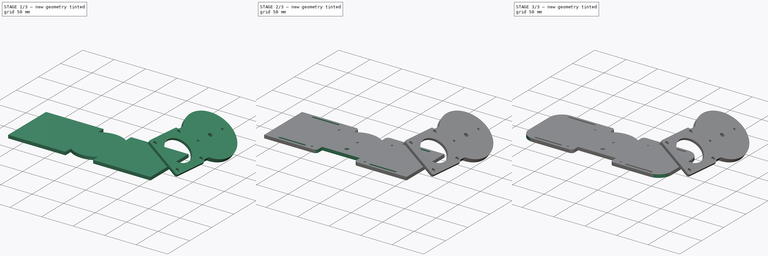
[diagram: build sequence overview — one tinted view per stage of 3, left to right]
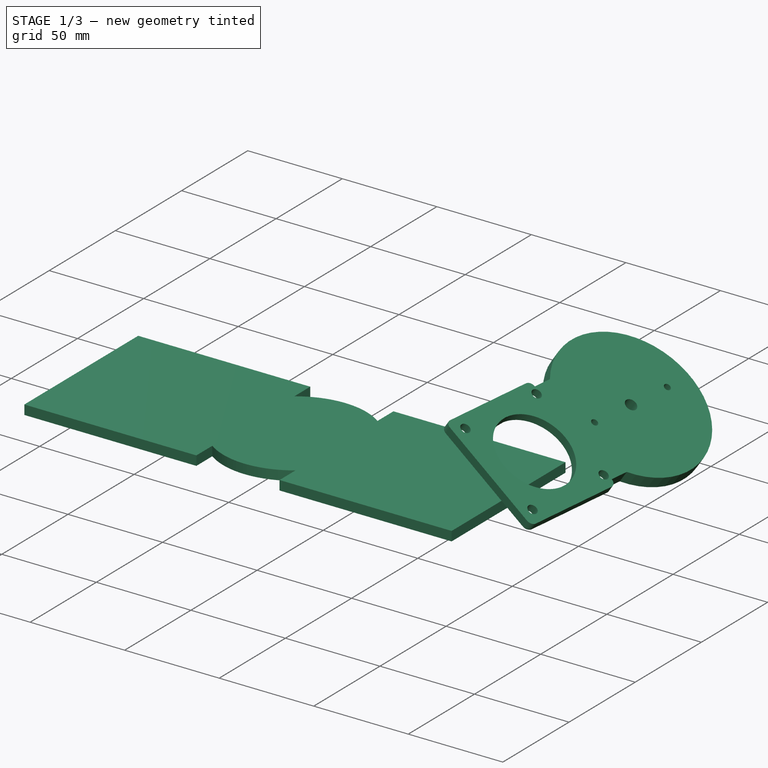
[diagram: stage 1 of 3 — iso view after this stage's code; geometry added in this stage tinted green]
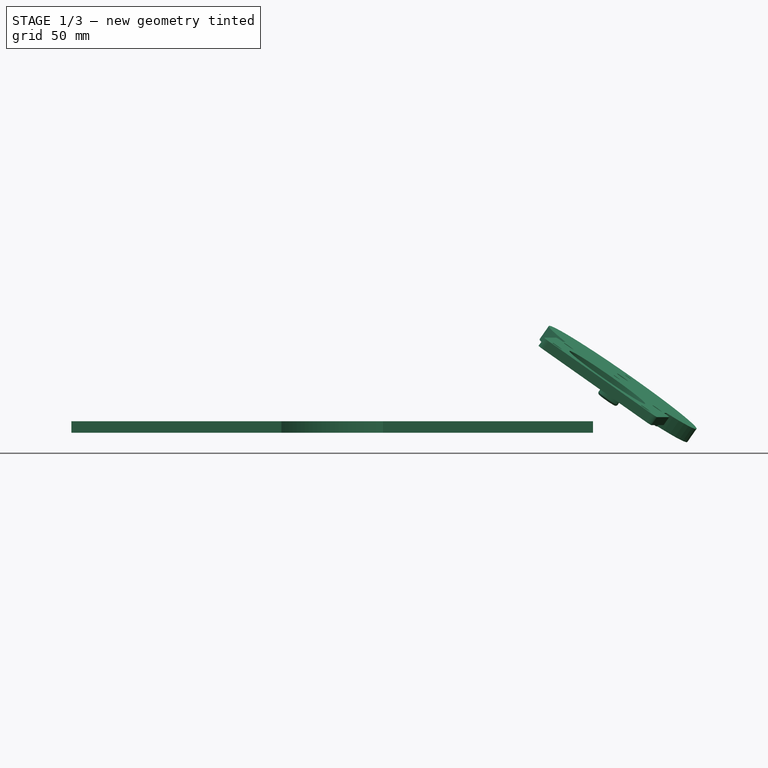
[diagram: stage 1 of 3 — front view after this stage's code; geometry added in this stage tinted green]
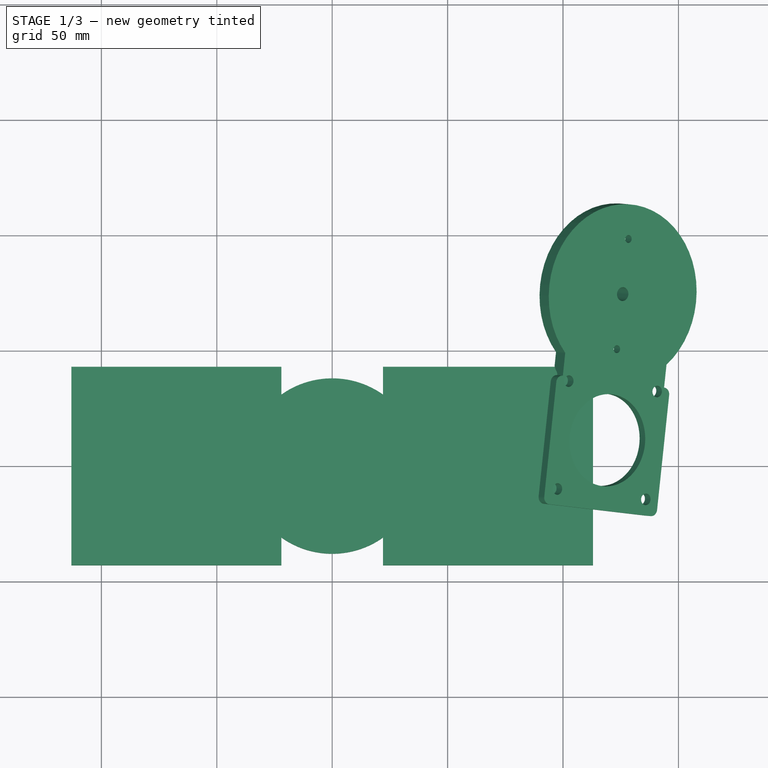
[diagram: stage 1 of 3 — top view after this stage's code; geometry added in this stage tinted green]
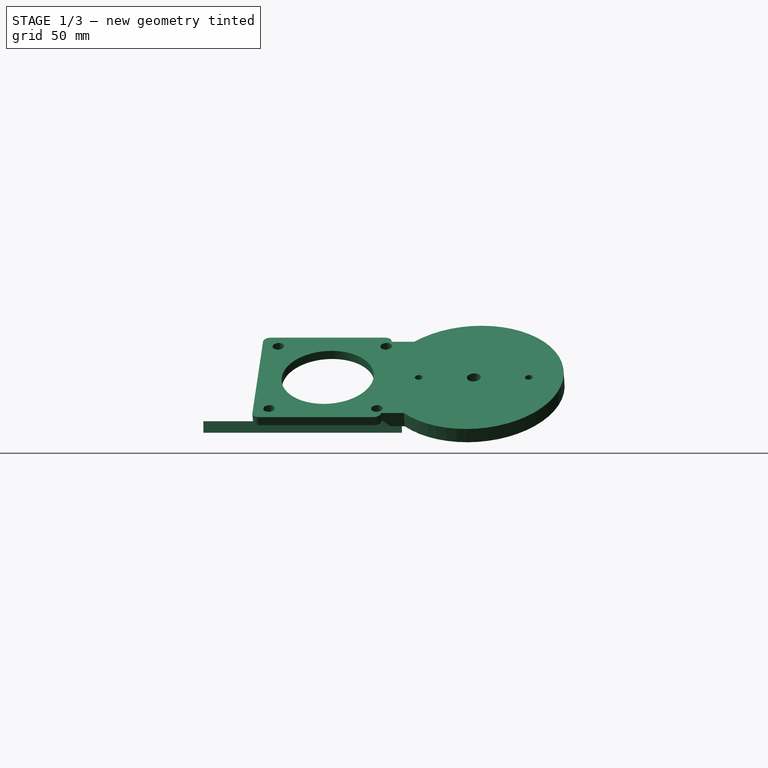
[diagram: stage 1 of 3 — right view after this stage's code; geometry added in this stage tinted green]
FCSTD DOCUMENT  (FreeCAD 0.21R33668 +26 (Git))
Label: base_link_1+Base_Low
License: All rights reserved
LicenseURL: https://en.wikipedia.org/wiki/All_rights_reserved
objects: App::FeaturePython×6, Sketcher::SketchObject×3, PartDesign::Pocket×2, PartDesign::Fillet×2, Part::FeaturePython×2, PartDesign::Pad×1, PartDesign::Body×1
note: 16 computed .brp shape members not serialized (recipe doc carries the construction recipe); baked Part::Feature solids carry a one-line shape summary decoded from their .brp

FEATURE [Sketcher::SketchObject] Sketch
  FullyConstrained = true
  MapMode = 5
  Support = -> [XY_Plane]
  sketch-geometry (12):
    g0: ArcOfCircle CenterX=0 CenterY=0 CenterZ=0 NormalX=0 NormalY=0 NormalZ=1 AngleXU=0 Radius=38 StartAngle=4.09495 EndAngle=5.32983
    g1: LineSegment StartX=-113 StartY=43.0039 StartZ=0 EndX=-22 EndY=43.0039 EndZ=0
    g2: LineSegment StartX=-22 StartY=43.0039 StartZ=0 EndX=-22 EndY=30.9839 EndZ=0
    g3: LineSegment StartX=-22 StartY=-43.0039 StartZ=0 EndX=-113 EndY=-43.0039 EndZ=0
    g4: LineSegment StartX=-113 StartY=-43.0039 StartZ=0 EndX=-113 EndY=43.0039 EndZ=0
    g5: LineSegment StartX=22 StartY=43.0039 StartZ=0 EndX=113 EndY=43.0039 EndZ=0
    g6: LineSegment StartX=113 StartY=43.0039 StartZ=0 EndX=113 EndY=-43.0039 EndZ=0
    g7: LineSegment StartX=113 StartY=-43.0039 StartZ=0 EndX=22 EndY=-43.0039 EndZ=0
    g8: LineSegment StartX=22 StartY=-43.0039 StartZ=0 EndX=22 EndY=-30.9839 EndZ=0
    g9: LineSegment StartX=-22 StartY=-30.9839 StartZ=0 EndX=-22 EndY=-43.0039 EndZ=0
    g10: LineSegment StartX=22 StartY=30.9839 StartZ=0 EndX=22 EndY=43.0039 EndZ=0
    g11: ArcOfCircle CenterX=0 CenterY=0 CenterZ=0 NormalX=0 NormalY=0 NormalZ=1 AngleXU=0 Radius=38 StartAngle=0.953359 EndAngle=2.18823
  constraints (36):
    c: Coincident(g0,g-1)
    c: Diameter(g0) = 76
    c: Coincident(g1,g2)
    c: Coincident(g9,g3)
    c: Coincident(g3,g4)
    c: Coincident(g4,g1)
    c: Horizontal(g1)
    c: Horizontal(g3)
    c: Vertical(g2)
    c: Vertical(g4)
    c: Coincident(g5,g6)
    c: Coincident(g6,g7)
    c: Coincident(g7,g8)
    c: Coincident(g10,g5)
    c: Horizontal(g5)
    c: Horizontal(g7)
    c: Vertical(g6)
    c: Vertical(g8)
    c: Horizontal(g1,g5)
    c: Horizontal(g9,g7)
    c: DistanceX(g1,g1) = 91
    c: DistanceX(g1,g0) = 22
    c: Equal(g1,g5)
    c: DistanceX(g0,g5) = 22
    c: Coincident(g2,g11)
    c: Coincident(g9,g0)
    c: Equal(g0,g11)
    c: Coincident(g0,g8)
    c: Coincident(g11,g10)
    c: Coincident(g0,g11)
    c: DistanceX(g7,g7) = 91
    c: DistanceX(g3,g3) = 91
    c: Vertical(g10,g5)
    c: Vertical(g0,g3)
    c: DistanceY(g10,g10) = 12.02
    c: DistanceY(g8,g8) = 12.02
FEATURE [PartDesign::Pad] Pad
  Direction = (0,0,1)
  Length = 5
  Length2 = 10
  Profile = -> Sketch
  ReferenceAxis = -> Sketch [N_Axis]
  Type = 0
FEATURE [Part::FeaturePython] b_Robot_Base_Low1_001_  label="Robot_Base_Low1_001"  # a2plus imported part (geometry in sourceFile) (typed FeaturePython)
  Placement = pos=(0,0,0) rot=(-0.05163,-0.98515,0.163748;5.66369rad)
  a2p_Version = 0.4.60n
  fixedPosition = true
  objectType = a2pPart
  sourceFile = .\Robot_Base_Low.step
  subassemblyImport = false
  timeLastImport = 1.72308e+09
  updateColors = true
FEATURE [App::FeaturePython] planeCoincident_001  label="planeCoincident_001__Pocket001"  # a2plus constraint (typed FeaturePython)
  Object1 = b_Robot_Base_Low1_001_
  Object2 = Pocket001
  ParentTreeObject = -> b_Robot_Base_Low1_001_
  SubElement1 = Face5
  SubElement2 = Face44
  Suppressed = false
  Type = plane
  directionConstraint = 0
  offset = 0
FEATURE [App::FeaturePython] planeCoincident_001_mirror  label="planeCoincident_001__Robot_Base_Low1_001"  # a2plus constraint (typed FeaturePython)
  Object1 = b_Robot_Base_Low1_001_
  Object2 = Pocket001
  ParentTreeObject = -> Pocket001
  SubElement1 = Face5
  SubElement2 = Face44
  Suppressed = false
  Type = plane
  directionConstraint = 0
  offset = 0
FEATURE [App::FeaturePython] axisCoincident_001  label="axisCoincident_001__Pocket001"  # a2plus constraint (typed FeaturePython)
  Object1 = b_Robot_Base_Low1_001_
  Object2 = Pocket001
  ParentTreeObject = -> b_Robot_Base_Low1_001_
  SubElement1 = Face3
  SubElement2 = Face27
  Suppressed = false
  Type = axial
  directionConstraint = 1
  lockRotation = false
FEATURE [App::FeaturePython] axisCoincident_001_mirror  label="axisCoincident_001__Robot_Base_Low1_001"  # a2plus constraint (typed FeaturePython)
  Object1 = b_Robot_Base_Low1_001_
  Object2 = Pocket001
  ParentTreeObject = -> Pocket001
  SubElement1 = Face3
  SubElement2 = Face27
  Suppressed = false
  Type = axial
  directionConstraint = 1
  lockRotation = false
FEATURE [App::FeaturePython] planesParallel_001  label="planesParallel_001__Pocket001"  # a2plus constraint (typed FeaturePython)
  Object1 = b_Robot_Base_Low1_001_
  Object2 = Pocket001
  ParentTreeObject = -> b_Robot_Base_Low1_001_
  SubElement1 = Face81
  SubElement2 = Face18
  Suppressed = false
  Type = planesParallel
  directionConstraint = 0
FEATURE [App::FeaturePython] planesParallel_001_mirror  label="planesParallel_001__Robot_Base_Low1_001"  # a2plus constraint (typed FeaturePython)
  Object1 = b_Robot_Base_Low1_001_
  Object2 = Pocket001
  ParentTreeObject = -> Pocket001
  SubElement1 = Face81
  SubElement2 = Face18
  Suppressed = false
  Type = planesParallel
  directionConstraint = 0
FEATURE [Part::FeaturePython] Connect  # WARN: FeaturePython — macro-defined, semantics opaque (R4)
  Objects = -> [b_Robot_Base_Low1_001_,Pocket001]
  Tolerance = 0
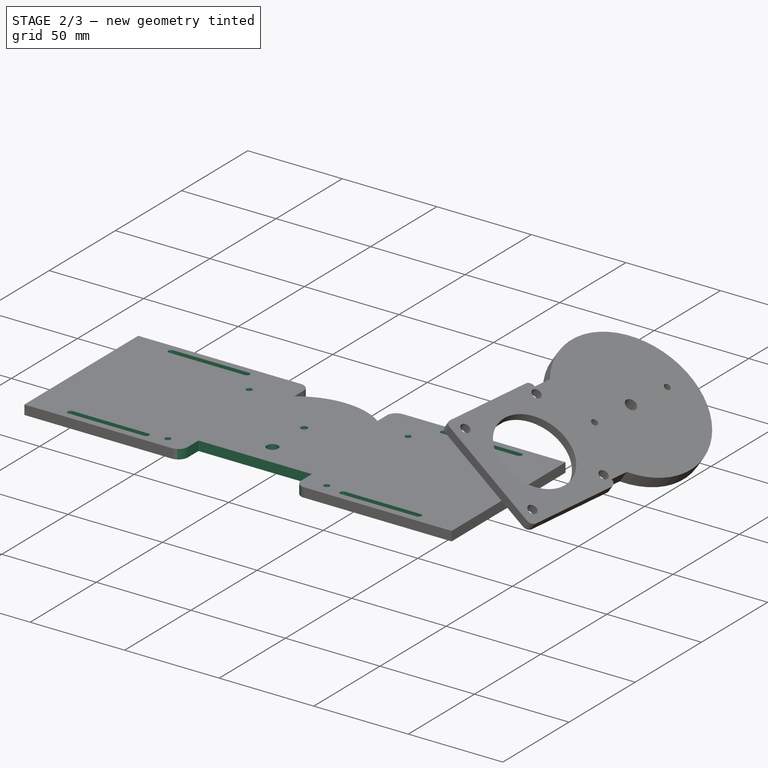
[diagram: stage 2 of 3 — iso view after this stage's code; geometry added in this stage tinted green]
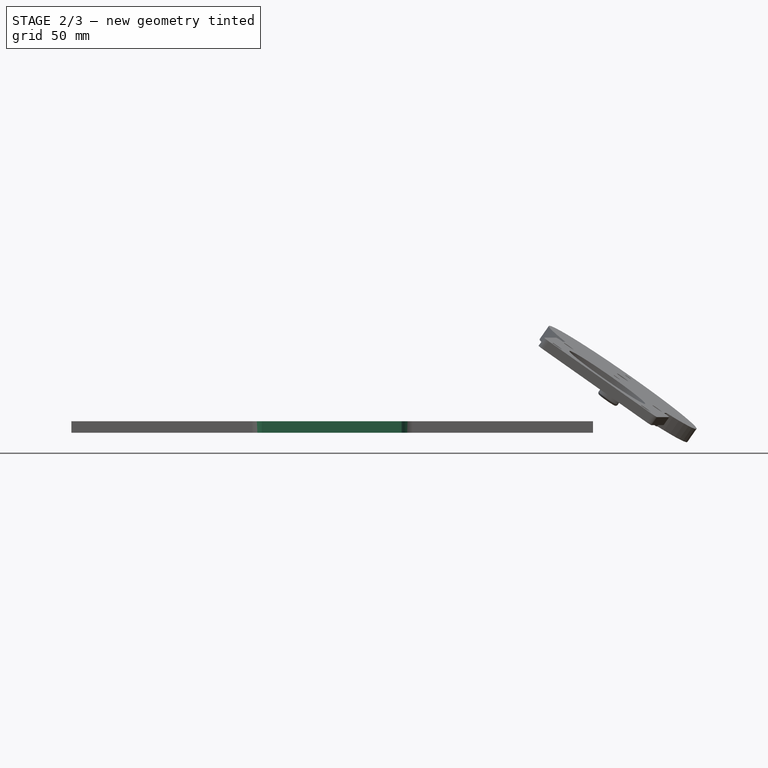
[diagram: stage 2 of 3 — front view after this stage's code; geometry added in this stage tinted green]
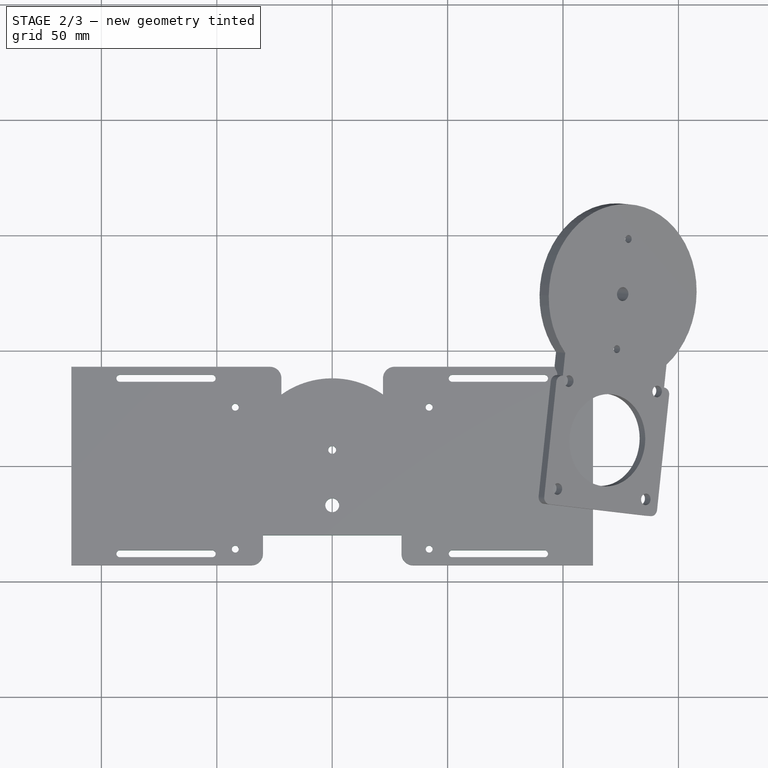
[diagram: stage 2 of 3 — top view after this stage's code; geometry added in this stage tinted green]
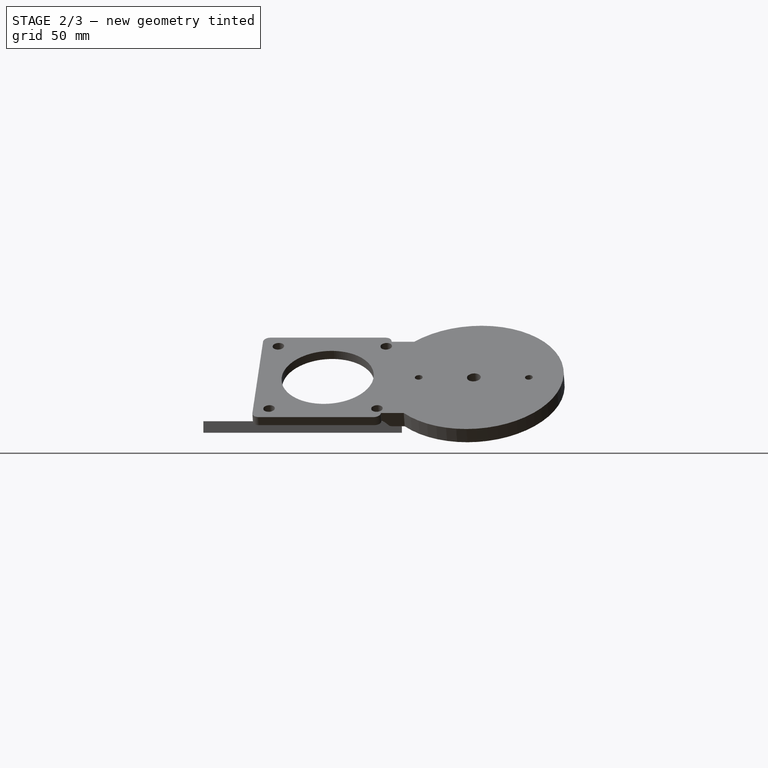
[diagram: stage 2 of 3 — right view after this stage's code; geometry added in this stage tinted green]
FEATURE [Sketcher::SketchObject] Sketch001
  ExternalGeometry = -> [Pad]
  FullyConstrained = false
  MapMode = 5
  Placement = pos=(0,0,5) rot=(0,0,1;0rad)
  Support = -> [Pad]
  sketch-geometry (26):
    g0: LineSegment StartX=-30 StartY=-30.0039 StartZ=0 EndX=30 EndY=-30.0039 EndZ=0
    g1: LineSegment StartX=30 StartY=-30.0039 StartZ=0 EndX=30 EndY=-50.0039 EndZ=0
    g2: LineSegment StartX=30 StartY=-50.0039 StartZ=0 EndX=-30 EndY=-50.0039 EndZ=0
    g3: LineSegment StartX=-30 StartY=-50.0039 StartZ=0 EndX=-30 EndY=-30.0039 EndZ=0
    g4: Circle CenterX=0 CenterY=-17 CenterZ=0 NormalX=0 NormalY=0 NormalZ=1 AngleXU=0 Radius=3
    g5: Circle CenterX=0 CenterY=7 CenterZ=0 NormalX=0 NormalY=0 NormalZ=1 AngleXU=0 Radius=1.7
    g6: ArcOfCircle CenterX=-92 CenterY=38.0039 CenterZ=0 NormalX=0 NormalY=0 NormalZ=1 AngleXU=0 Radius=1.5 StartAngle=1.5708 EndAngle=4.71239
    g7: ArcOfCircle CenterX=-52 CenterY=38.0039 CenterZ=0 NormalX=0 NormalY=0 NormalZ=1 AngleXU=0 Radius=1.5 StartAngle=4.71239 EndAngle=7.85398
    g8: LineSegment StartX=-92 StartY=36.5039 StartZ=0 EndX=-52 EndY=36.5039 EndZ=0
    g9: LineSegment StartX=-52 StartY=39.5039 StartZ=0 EndX=-92 EndY=39.5039 EndZ=0
    g10: ArcOfCircle CenterX=52 CenterY=38.0039 CenterZ=0 NormalX=0 NormalY=0 NormalZ=1 AngleXU=0 Radius=1.5 StartAngle=1.5708 EndAngle=4.71239
    g11: ArcOfCircle CenterX=92 CenterY=38.0039 CenterZ=0 NormalX=0 NormalY=0 NormalZ=1 AngleXU=0 Radius=1.5 StartAngle=4.71239 EndAngle=7.85398
    g12: LineSegment StartX=52 StartY=36.5039 StartZ=0 EndX=92 EndY=36.5039 EndZ=0
    g13: LineSegment StartX=92 StartY=39.5039 StartZ=0 EndX=52 EndY=39.5039 EndZ=0
    g14: ArcOfCircle CenterX=-92 CenterY=-38.0039 CenterZ=0 NormalX=0 NormalY=0 NormalZ=1 AngleXU=0 Radius=1.5 StartAngle=1.5708 EndAngle=4.71239
    g15: ArcOfCircle CenterX=-52 CenterY=-38.0039 CenterZ=0 NormalX=0 NormalY=0 NormalZ=1 AngleXU=0 Radius=1.5 StartAngle=4.71239 EndAngle=7.85398
    g16: LineSegment StartX=-92 StartY=-39.5039 StartZ=0 EndX=-52 EndY=-39.5039 EndZ=0
    g17: LineSegment StartX=-52 StartY=-36.5039 StartZ=0 EndX=-92 EndY=-36.5039 EndZ=0
    g18: ArcOfCircle CenterX=52 CenterY=-38.0039 CenterZ=0 NormalX=0 NormalY=0 NormalZ=1 AngleXU=0 Radius=1.5 StartAngle=1.5708 EndAngle=4.71239
    g19: ArcOfCircle CenterX=92 CenterY=-38.0039 CenterZ=0 NormalX=0 NormalY=0 NormalZ=1 AngleXU=0 Radius=1.5 StartAngle=4.71239 EndAngle=7.85398
    g20: LineSegment StartX=52 StartY=-39.5039 StartZ=0 EndX=92 EndY=-39.5039 EndZ=0
    g21: LineSegment StartX=92 StartY=-36.5039 StartZ=0 EndX=52 EndY=-36.5039 EndZ=0
    g22: Circle CenterX=42 CenterY=25.4961 CenterZ=0 NormalX=0 NormalY=0 NormalZ=1 AngleXU=0 Radius=1.5
    g23: Circle CenterX=42 CenterY=-36.0039 CenterZ=0 NormalX=0 NormalY=0 NormalZ=1 AngleXU=0 Radius=1.5
    g24: Circle CenterX=-42 CenterY=25.4961 CenterZ=0 NormalX=0 NormalY=0 NormalZ=1 AngleXU=0 Radius=1.5
    g25: Circle CenterX=-42 CenterY=-36.0039 CenterZ=0 NormalX=0 NormalY=0 NormalZ=1 AngleXU=0 Radius=1.5
  constraints (69):
    c: Coincident(g0,g1)
    c: Coincident(g1,g2)
    c: Coincident(g2,g3)
    c: Coincident(g3,g0)
    c: Horizontal(g0)
    c: Horizontal(g2)
    c: Vertical(g1)
    c: Vertical(g3)
    c: DistanceY(g-3,g0) = 13
    c: DistanceX(g0,g0) = 60
    c: DistanceY(g1,g1) = 20
    c: PointOnObject(g4,g-2)
    c: Diameter(g4) = 6
    c: DistanceY(g4,g-1) = 17
    c: PointOnObject(g5,g-2)
    c: Diameter(g5) = 3.4
    c: DistanceY(g4,g5) = 24
    c: Tangent(g6,g8) = -1.5708
    c: Tangent(g8,g7) = -1.5708
    c: Tangent(g7,g9) = -1.5708
    c: Tangent(g9,g6) = -1.5708
    c: Equal(g6,g7)
    c: Horizontal(g8)
    c: Tangent(g10,g12) = -1.5708
    c: Tangent(g12,g11) = -1.5708
    c: Tangent(g11,g13) = -1.5708
    c: Tangent(g13,g10) = -1.5708
    c: Equal(g10,g11)
    c: Tangent(g14,g16) = -1.5708
    c: Tangent(g16,g15) = -1.5708
    c: Tangent(g15,g17) = -1.5708
    c: Tangent(g17,g14) = -1.5708
    c: Equal(g14,g15)
    c: Horizontal(g16)
    c: Tangent(g18,g20) = -1.5708
    c: Tangent(g20,g19) = -1.5708
    c: Tangent(g19,g21) = -1.5708
    c: Tangent(g21,g18) = -1.5708
    c: Equal(g18,g19)
    c: Horizontal(g20)
    c: Horizontal(g7,g10)
    c: Horizontal(g15,g18)
    c: Vertical(g10,g18)
    c: Vertical(g11,g19)
    c: Horizontal(g11,g10)
    c: Equal(g7,g10)
    c: Equal(g18,g15)
    c: Radius(g11) = 1.5
    c: DistanceY(g11,g-4) = 5
    c: DistanceX(g-4,g11) = 70
    c: DistanceX(g13,g13) = 40
    c: Equal(g19,g11)
    c: DistanceY(g-3,g19) = 5
    c: DistanceX(g6,g-5) = 70
    c: DistanceX(g9,g9) = 40
    c: Vertical(g14,g6)
    c: Vertical(g7,g15)
    c: Equal(g24,g22)
    c: Equal(g22,g23)
    c: Equal(g25,g23)
    c: DistanceY(g23,g22) = 61.5
    c: DistanceX(g25,g23) = 84
    c: DistanceX(g-1,g23) = 42
    c: Horizontal(g24,g22)
    c: Horizontal(g25,g23)
    c: Diameter(g22) = 3
    c: DistanceY(g-3,g23) = 7
    c: Vertical(g23,g22)
    c: Vertical(g24,g25)
FEATURE [PartDesign::Pocket] Pocket
  BaseFeature = -> Pad
  Direction = (0,0,-1)
  Length = 5
  Length2 = 5
  Profile = -> Sketch001
  ReferenceAxis = -> Sketch001 [N_Axis]
  Type = 1
FEATURE [PartDesign::Fillet] Fillet
  Base = -> Pocket [Edge46,Edge40,Edge52,Edge37]
  BaseFeature = -> Pocket
  Radius = 5
  SupportTransform = false
  UseAllEdges = false
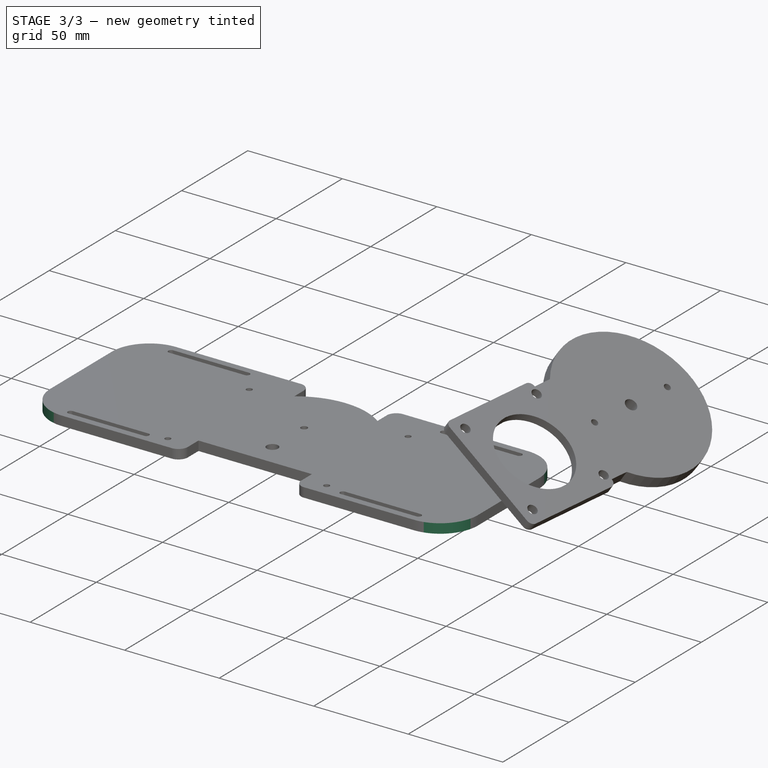
[diagram: stage 3 of 3 — iso view after this stage's code; geometry added in this stage tinted green]
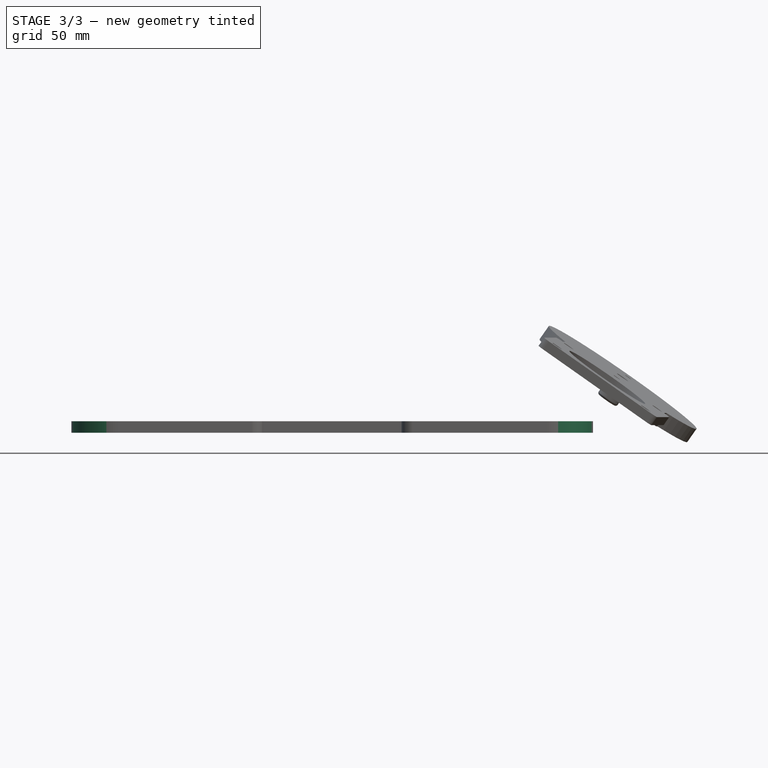
[diagram: stage 3 of 3 — front view after this stage's code; geometry added in this stage tinted green]
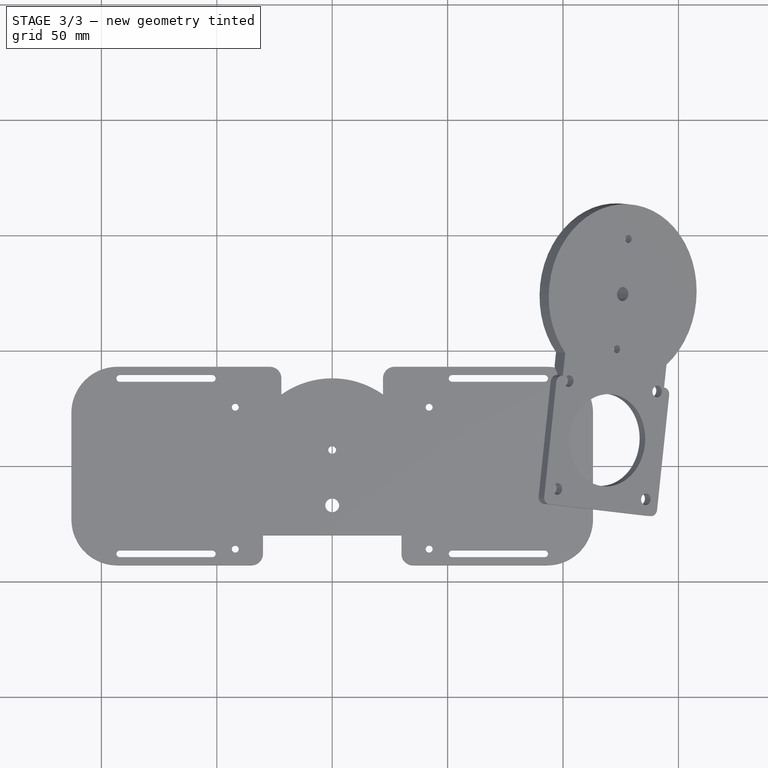
[diagram: stage 3 of 3 — top view after this stage's code; geometry added in this stage tinted green]
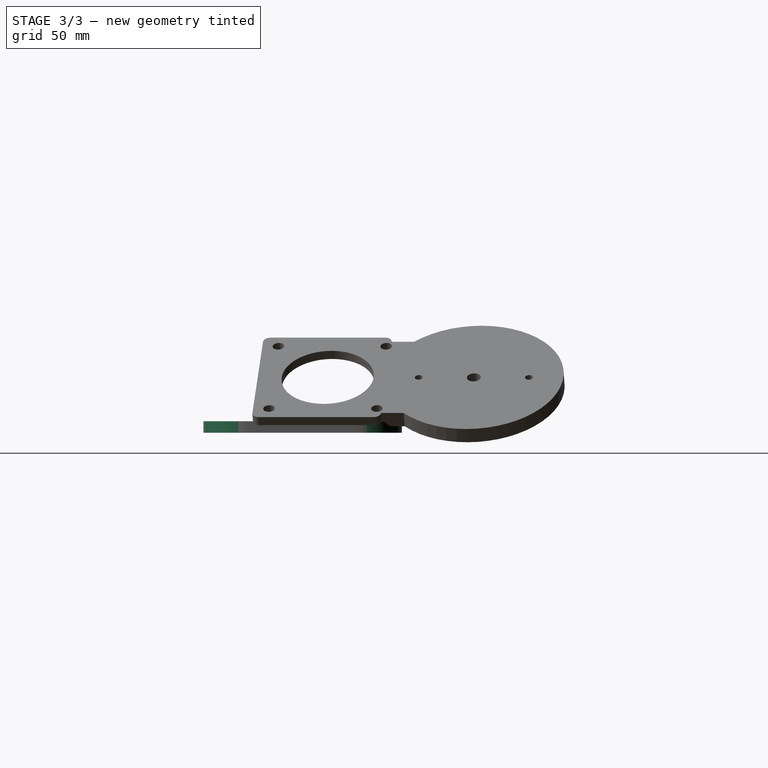
[diagram: stage 3 of 3 — right view after this stage's code; geometry added in this stage tinted green]
FEATURE [PartDesign::Fillet] Fillet001
  Base = -> Fillet [Edge44,Edge40,Edge66,Edge62]
  BaseFeature = -> Fillet
  Radius = 20
  SupportTransform = false
  UseAllEdges = false
FEATURE [Sketcher::SketchObject] Sketch002
  ExternalGeometry = -> [Fillet001]
  FullyConstrained = true
  MapMode = 5
  Placement = pos=(0,0,0) rot=(1,0,0;3.14159rad)
  Support = -> [Fillet001]
  sketch-geometry (4):
    g0: Circle CenterX=-42 CenterY=-25.4961 CenterZ=0 NormalX=0 NormalY=0 NormalZ=1 AngleXU=0 Radius=3.5
    g1: Circle CenterX=-42 CenterY=36.0039 CenterZ=0 NormalX=0 NormalY=0 NormalZ=1 AngleXU=0 Radius=3.5
    g2: Circle CenterX=42 CenterY=36.0039 CenterZ=0 NormalX=0 NormalY=0 NormalZ=1 AngleXU=0 Radius=3.5
    g3: Circle CenterX=42 CenterY=-25.4961 CenterZ=0 NormalX=0 NormalY=0 NormalZ=1 AngleXU=0 Radius=3.5
  constraints (8):
    c: Coincident(g0,g-6)
    c: Coincident(g1,g-3)
    c: Coincident(g2,g-4)
    c: Coincident(g3,g-5)
    c: Diameter(g3) = 7
    c: Equal(g3,g0)
    c: Equal(g0,g1)
    c: Equal(g1,g2)
FEATURE [PartDesign::Body] Body
  Group = -> [Sketch,Pad,Sketch001,Pocket,Fillet,Fillet001,Sketch002]
  Origin = -> Origin
  Tip = -> Fillet001
FEATURE [PartDesign::Pocket] Pocket001
  BaseFeature = -> Fillet001
  Direction = (0,0,1)
  Length = 2
  Length2 = 5
  Placement = pos=(124.795,91.3903,19.9304) rot=(0.05163,0.98515,-0.163748;0.619499rad)
  Profile = -> Sketch002
  ReferenceAxis = -> Sketch002 [N_Axis]
  Type = 0
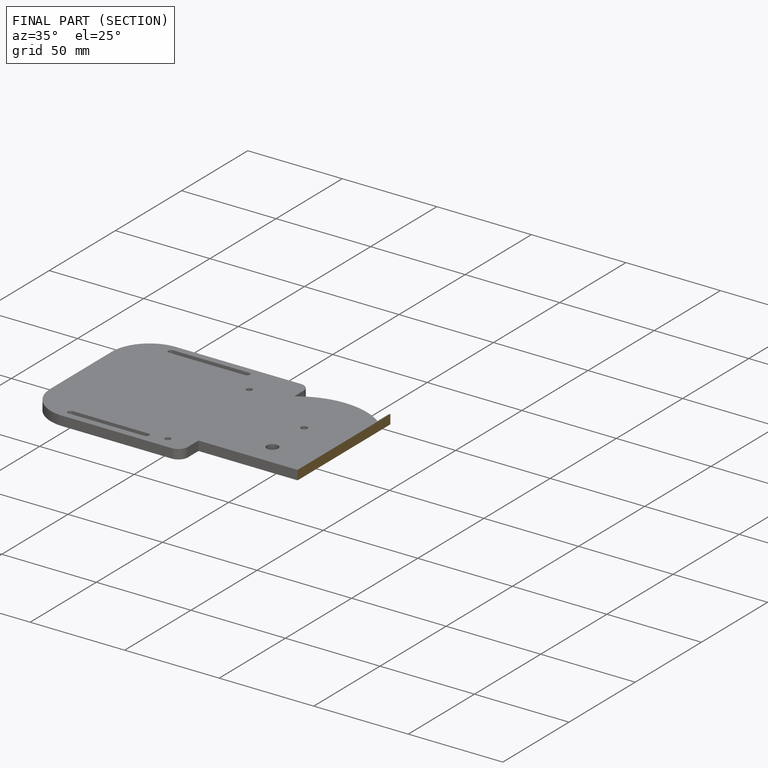
[diagram: finished part — half-section view (interior)]
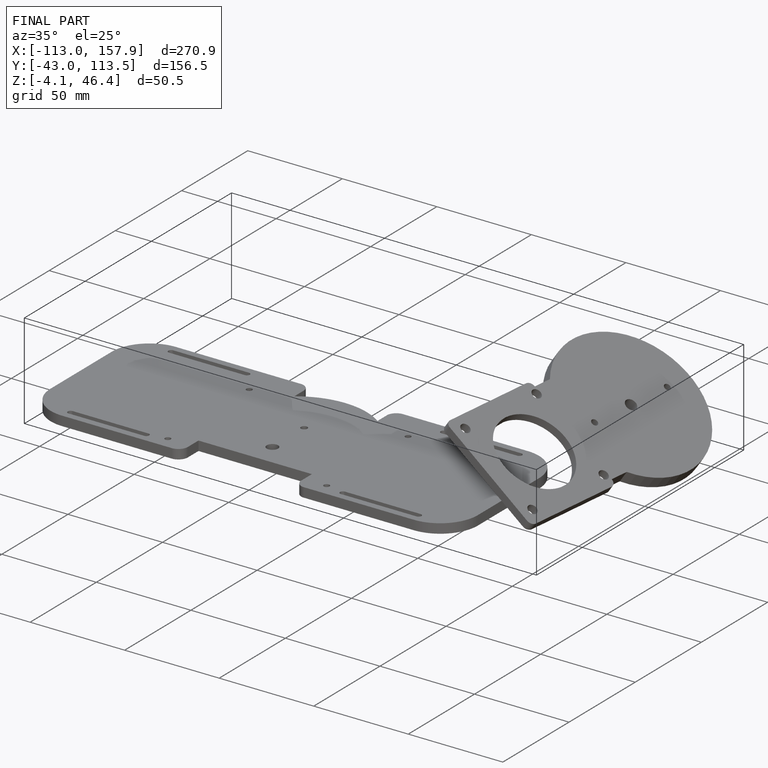
[diagram: finished part — iso view with bounding-box wireframe]
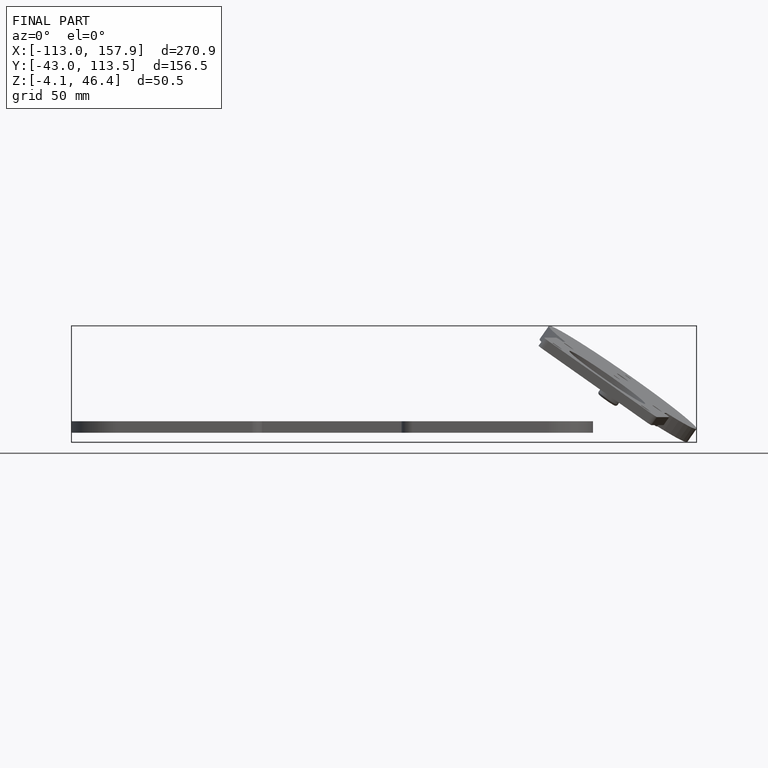
[diagram: finished part — front view with bounding-box wireframe]
